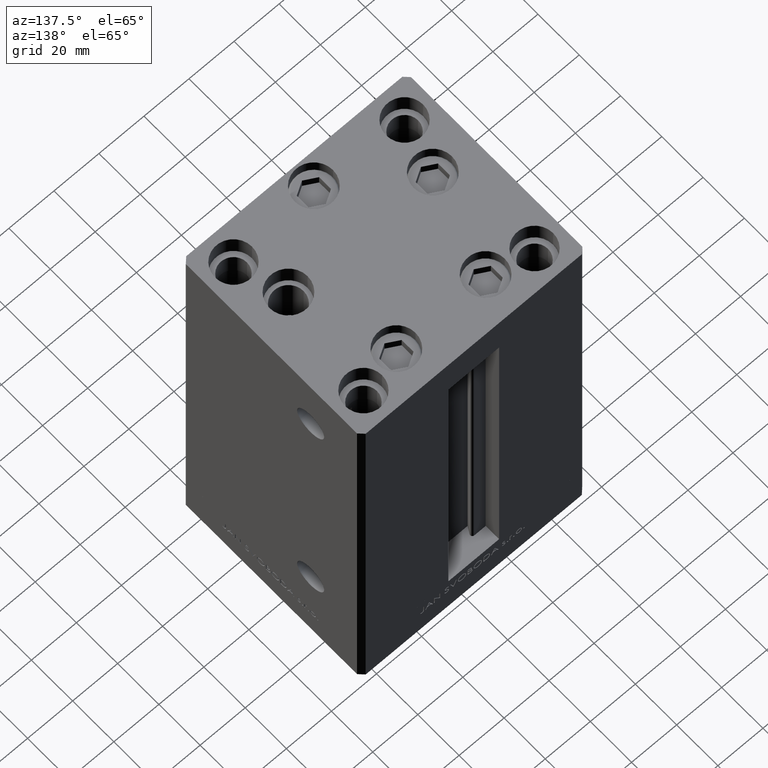
[diagram: clean part render]
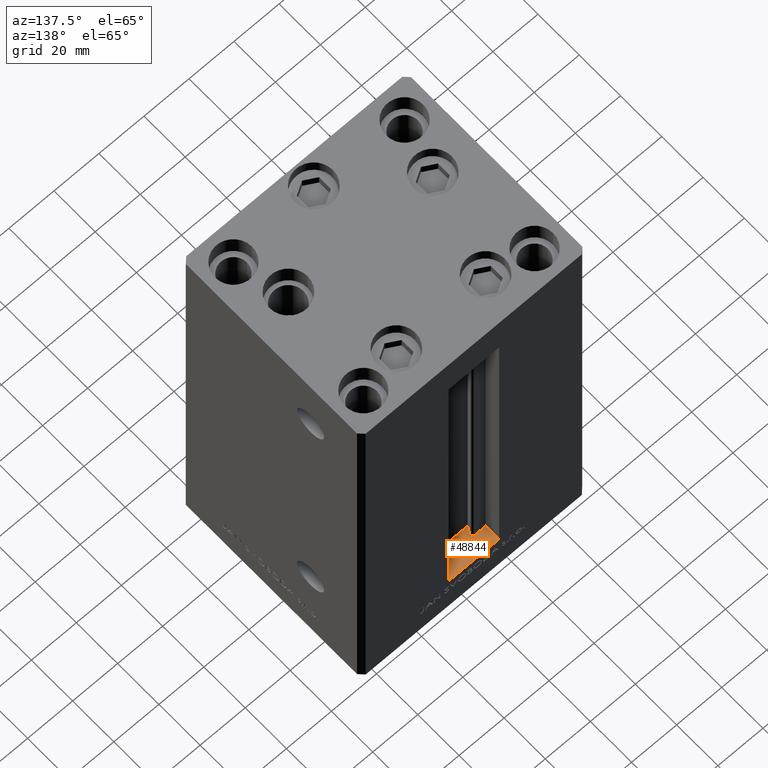
[diagram: same view with one face highlighted and labeled with its STEP entity id]
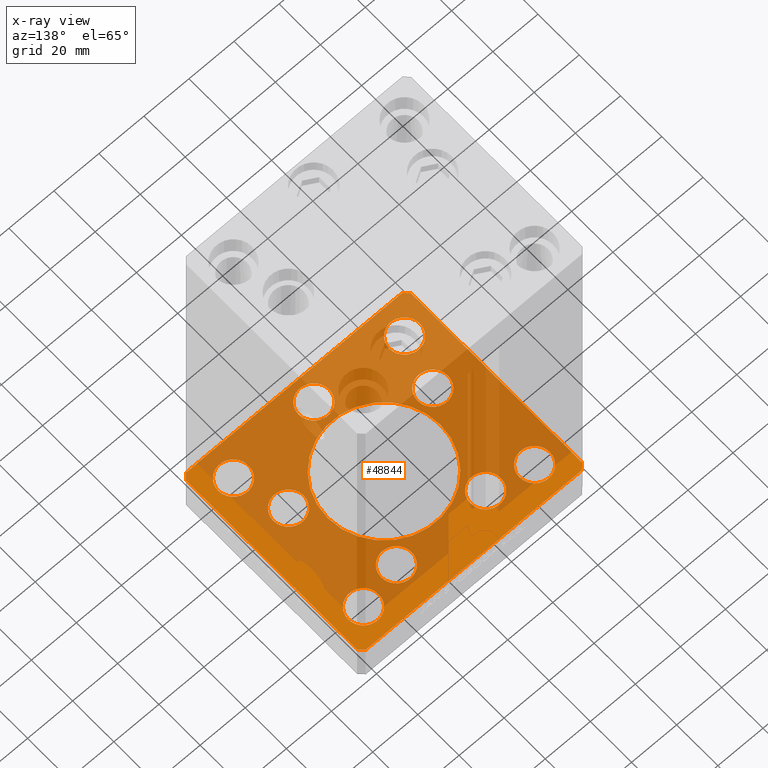
[diagram: x-ray of the same camera — body ghosted, the highlighted face saturated]
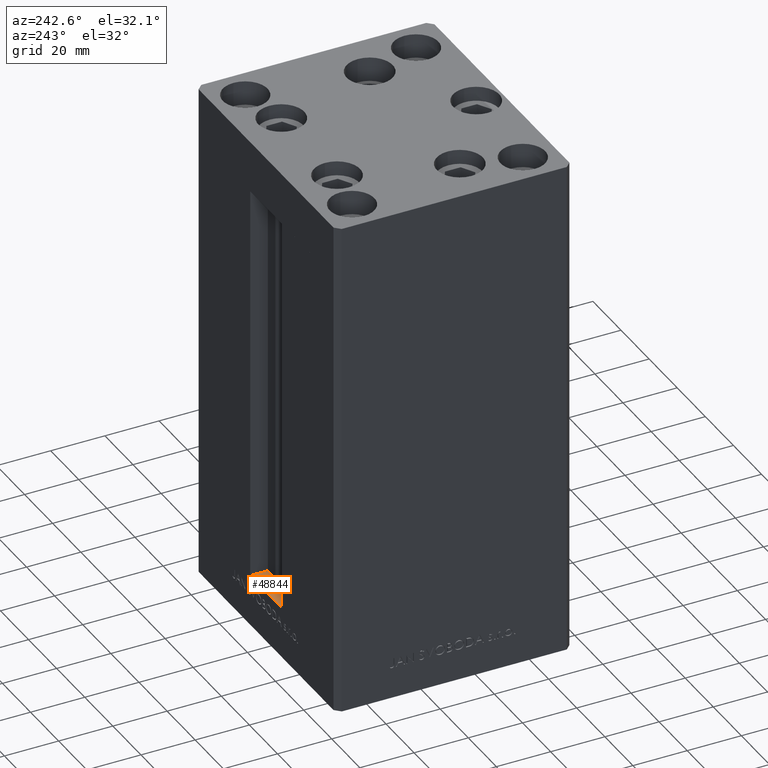
[diagram: same view with one face highlighted and labeled with its STEP entity id]
A machine part, auxiliary view. The second image highlights one B-rep face of the part: STEP entity #48844.
The next image is the same camera in x-ray: the body ghosted, the highlighted face saturated — about 75% of this face is hidden behind the body in this view.
A second angle (auxiliary view) of the same face is appended — the face is thin or edge-on in the first view.
In plain terms, the highlighted planar face has unit normal (0, 0, -1).
Its self-contained STEP definition (entity closure, byte-faithful):
#1394 = AXIS2_PLACEMENT_3D ( 'NONE', #2048, #35918, #40411 ) ;
#1784 = VERTEX_POINT ( 'NONE', #2736 ) ;
#2048 = CARTESIAN_POINT ( 'NONE',  ( 38.00000000000000000, 31.50000000000000000, -19.00000000000000000 ) ) ;
#2058 = ORIENTED_EDGE ( 'NONE', *, *, #21790, .F. ) ;
#2091 = ORIENTED_EDGE ( 'NONE', *, *, #31348, .F. ) ;
#2102 = CARTESIAN_POINT ( 'NONE',  ( -32.05550741379015989, -11.33333333333332860, -19.00000000000000000 ) ) ;
#2342 = DIRECTION ( 'NONE',  ( 1.000000000000000000, 0.000000000000000000, 0.000000000000000000 ) ) ;
#2702 = CARTESIAN_POINT ( 'NONE',  ( -48.00000000000000711, -43.50000000000002842, -19.00000000000000000 ) ) ;
#2736 = CARTESIAN_POINT ( 'NONE',  ( 50.00000000000000000, -41.49999999999992895, -19.00000000000000000 ) ) ;
#2881 = AXIS2_PLACEMENT_3D ( 'NONE', #22016, #34025, #49327 ) ;
#2888 = FACE_BOUND ( 'NONE', #30594, .T. ) ;
#3144 = EDGE_CURVE ( 'NONE', #10215, #18016, #43244, .T. ) ;
#3244 = DIRECTION ( 'NONE',  ( 1.000000000000000000, 0.000000000000000000, 0.000000000000000000 ) ) ;
#3281 = DIRECTION ( 'NONE',  ( -0.000000000000000000, 0.000000000000000000, 1.000000000000000000 ) ) ;
#3740 = AXIS2_PLACEMENT_3D ( 'NONE', #10860, #7106, #11343 ) ;
#3785 = CIRCLE ( 'NONE', #1394, 6.749999999999999112 ) ;
#4360 = CARTESIAN_POINT ( 'NONE',  ( -50.00000000000000000, -41.50000000000004263, -19.00000000000000000 ) ) ;
#4698 = CARTESIAN_POINT ( 'NONE',  ( -44.75000000000000711, -31.50000000000000711, -19.00000000000000000 ) ) ;
#4712 = CARTESIAN_POINT ( 'NONE',  ( 48.00000000000000711, -43.49999999999992184, -19.00000000000000000 ) ) ;
#4984 = DIRECTION ( 'NONE',  ( 1.000000000000000000, 0.000000000000000000, 0.000000000000000000 ) ) ;
#5190 = CARTESIAN_POINT ( 'NONE',  ( -50.00000000000000711, 41.49999999999999289, -19.00000000000000000 ) ) ;
#5194 = VERTEX_POINT ( 'NONE', #5190 ) ;
#5260 = CARTESIAN_POINT ( 'NONE',  ( 0.000000000000000000, -34.00000000000000000, -19.00000000000000000 ) ) ;
#5419 = DIRECTION ( 'NONE',  ( 0.000000000000000000, 1.000000000000000000, 0.000000000000000000 ) ) ;
#5436 = DIRECTION ( 'NONE',  ( -0.000000000000000000, 0.000000000000000000, 1.000000000000000000 ) ) ;
#5676 = CARTESIAN_POINT ( 'NONE',  ( 0.000000000000000000, -34.00000000000000000, -19.00000000000000000 ) ) ;
#5724 = CARTESIAN_POINT ( 'NONE',  ( 32.05550741379015989, -11.33333333333332860, -19.00000000000000000 ) ) ;
#5908 = FACE_BOUND ( 'NONE', #23778, .T. ) ;
#6383 = CARTESIAN_POINT ( 'NONE',  ( -25.30550741379015989, -11.33333333333332860, -19.00000000000000000 ) ) ;
#6409 = CARTESIAN_POINT ( 'NONE',  ( -44.75000000000000000, 31.50000000000000000, -19.00000000000000000 ) ) ;
#6685 = CIRCLE ( 'NONE', #16282, 6.749999999999999112 ) ;
#7106 = DIRECTION ( 'NONE',  ( -0.000000000000000000, 0.000000000000000000, 1.000000000000000000 ) ) ;
#7257 = CARTESIAN_POINT ( 'NONE',  ( 0.000000000000000000, 0.000000000000000000, -19.00000000000000000 ) ) ;
#7320 = CARTESIAN_POINT ( 'NONE',  ( 44.75000000000000000, 31.50000000000000000, -19.00000000000000000 ) ) ;
#7476 = CIRCLE ( 'NONE', #9874, 6.749999999999999112 ) ;
#7491 = DIRECTION ( 'NONE',  ( 0.000000000000000000, -0.000000000000000000, -1.000000000000000000 ) ) ;
#7499 = CARTESIAN_POINT ( 'NONE',  ( 44.75000000000000711, -31.50000000000000711, -19.00000000000000000 ) ) ;
#7636 = DIRECTION ( 'NONE',  ( -0.000000000000000000, 0.000000000000000000, 1.000000000000000000 ) ) ;
#7870 = CIRCLE ( 'NONE', #18282, 6.749999999999999112 ) ;
#7979 = VERTEX_POINT ( 'NONE', #7320 ) ;
#8102 = VECTOR ( 'NONE', #38256, 999.9999999999998863 ) ;
#8246 = DIRECTION ( 'NONE',  ( -0.000000000000000000, 0.000000000000000000, 1.000000000000000000 ) ) ;
#8331 = AXIS2_PLACEMENT_3D ( 'NONE', #5676, #5436, #20987 ) ;
#8622 = AXIS2_PLACEMENT_3D ( 'NONE', #18548, #22083, #11261 ) ;
#8646 = EDGE_CURVE ( 'NONE', #16006, #22380, #7476, .T. ) ;
#8969 = EDGE_CURVE ( 'NONE', #1784, #20825, #13192, .T. ) ;
#9077 = CIRCLE ( 'NONE', #20344, 6.749999999999999112 ) ;
#9221 = VERTEX_POINT ( 'NONE', #36139 ) ;
#9788 = VERTEX_POINT ( 'NONE', #32263 ) ;
#9874 = AXIS2_PLACEMENT_3D ( 'NONE', #5724, #36318, #29299 ) ;
#10215 = VERTEX_POINT ( 'NONE', #24572 ) ;
#10351 = EDGE_LOOP ( 'NONE', ( #30071, #14332 ) ) ;
#10544 = CARTESIAN_POINT ( 'NONE',  ( -32.05550741379015989, -11.33333333333332860, -19.00000000000000000 ) ) ;
#10725 = EDGE_CURVE ( 'NONE', #27677, #47545, #39597, .T. ) ;
#10860 = CARTESIAN_POINT ( 'NONE',  ( 19.82068048781374969, 27.62499999999998934, -19.00000000000000000 ) ) ;
#11085 = ORIENTED_EDGE ( 'NONE', *, *, #41755, .F. ) ;
#11201 = CARTESIAN_POINT ( 'NONE',  ( -31.25000000000000711, -31.50000000000000711, -19.00000000000000000 ) ) ;
#11261 = DIRECTION ( 'NONE',  ( 1.000000000000000000, 0.000000000000000000, 0.000000000000000000 ) ) ;
#11343 = DIRECTION ( 'NONE',  ( 1.000000000000000000, 0.000000000000000000, 0.000000000000000000 ) ) ;
#11477 = CARTESIAN_POINT ( 'NONE',  ( -38.00000000000000711, -31.50000000000000711, -19.00000000000000000 ) ) ;
#11486 = DIRECTION ( 'NONE',  ( 0.000000000000000000, -0.000000000000000000, -1.000000000000000000 ) ) ;
#11971 = EDGE_CURVE ( 'NONE', #22380, #16006, #48469, .T. ) ;
#12108 = AXIS2_PLACEMENT_3D ( 'NONE', #46577, #11486, #19508 ) ;
#12630 = VECTOR ( 'NONE', #29911, 1000.000000000000000 ) ;
#12902 = ORIENTED_EDGE ( 'NONE', *, *, #25590, .F. ) ;
#13046 = VERTEX_POINT ( 'NONE', #25348 ) ;
#13192 = LINE ( 'NONE', #33418, #30756 ) ;
#13201 = VECTOR ( 'NONE', #44300, 1000.000000000000000 ) ;
#13836 = DIRECTION ( 'NONE',  ( -0.000000000000000000, 0.000000000000000000, 1.000000000000000000 ) ) ;
#14171 = DIRECTION ( 'NONE',  ( 1.000000000000000000, 0.000000000000000000, 0.000000000000000000 ) ) ;
#14332 = ORIENTED_EDGE ( 'NONE', *, *, #18773, .F. ) ;
#14425 = FACE_OUTER_BOUND ( 'NONE', #41709, .T. ) ;
#15024 = VECTOR ( 'NONE', #43061, 1000.000000000000000 ) ;
#15259 = AXIS2_PLACEMENT_3D ( 'NONE', #43970, #21162, #32191 ) ;
#15480 = CIRCLE ( 'NONE', #43523, 6.749999999999999112 ) ;
#15486 = EDGE_CURVE ( 'NONE', #15557, #1784, #23796, .T. ) ;
#15538 = VERTEX_POINT ( 'NONE', #6383 ) ;
#15557 = VERTEX_POINT ( 'NONE', #37228 ) ;
#16006 = VERTEX_POINT ( 'NONE', #31287 ) ;
#16282 = AXIS2_PLACEMENT_3D ( 'NONE', #38332, #42085, #49383 ) ;
#16731 = ORIENTED_EDGE ( 'NONE', *, *, #46463, .T. ) ;
#16935 = ORIENTED_EDGE ( 'NONE', *, *, #23435, .T. ) ;
#16945 = CIRCLE ( 'NONE', #24203, 6.749999999999999112 ) ;
#17236 = VERTEX_POINT ( 'NONE', #28400 ) ;
#17447 = FACE_BOUND ( 'NONE', #49205, .T. ) ;
#17868 = EDGE_CURVE ( 'NONE', #40601, #15557, #48056, .T. ) ;
#17935 = FACE_BOUND ( 'NONE', #21556, .T. ) ;
#18016 = VERTEX_POINT ( 'NONE', #6409 ) ;
#18072 = ORIENTED_EDGE ( 'NONE', *, *, #41538, .T. ) ;
#18142 = VECTOR ( 'NONE', #46836, 1000.000000000000114 ) ;
#18147 = EDGE_CURVE ( 'NONE', #13046, #7979, #3785, .T. ) ;
#18185 = FACE_BOUND ( 'NONE', #46782, .T. ) ;
#18276 = EDGE_CURVE ( 'NONE', #37534, #15538, #39055, .T. ) ;
#18282 = AXIS2_PLACEMENT_3D ( 'NONE', #46366, #8246, #38852 ) ;
#18437 = FACE_BOUND ( 'NONE', #20364, .T. ) ;
#18548 = CARTESIAN_POINT ( 'NONE',  ( 38.00000000000000711, -31.50000000000000711, -19.00000000000000000 ) ) ;
#18773 = EDGE_CURVE ( 'NONE', #20967, #46425, #39772, .T. ) ;
#18829 = CARTESIAN_POINT ( 'NONE',  ( -19.82068048781374969, 27.62499999999998934, -19.00000000000000000 ) ) ;
#19494 = VECTOR ( 'NONE', #38321, 1000.000000000000000 ) ;
#19508 = DIRECTION ( 'NONE',  ( 1.000000000000000000, 0.000000000000000000, 0.000000000000000000 ) ) ;
#19687 = ORIENTED_EDGE ( 'NONE', *, *, #36786, .T. ) ;
#19762 = CARTESIAN_POINT ( 'NONE',  ( 47.99999999999999289, 43.50000000000000000, -19.00000000000000000 ) ) ;
#20344 = AXIS2_PLACEMENT_3D ( 'NONE', #5260, #44364, #40603 ) ;
#20354 = CARTESIAN_POINT ( 'NONE',  ( 38.80550741379015989, -11.33333333333332860, -19.00000000000000000 ) ) ;
#20364 = EDGE_LOOP ( 'NONE', ( #2058, #2091 ) ) ;
#20469 = CARTESIAN_POINT ( 'NONE',  ( -38.00000000000000711, -31.50000000000000711, -19.00000000000000000 ) ) ;
#20548 = DIRECTION ( 'NONE',  ( -0.000000000000000000, 0.000000000000000000, 1.000000000000000000 ) ) ;
#20646 = CARTESIAN_POINT ( 'NONE',  ( -26.57068048781375325, 27.62499999999998934, -19.00000000000000000 ) ) ;
#20825 = VERTEX_POINT ( 'NONE', #30676 ) ;
#20891 = VERTEX_POINT ( 'NONE', #28163 ) ;
#20967 = VERTEX_POINT ( 'NONE', #4698 ) ;
#20987 = DIRECTION ( 'NONE',  ( 1.000000000000000000, 0.000000000000000000, 0.000000000000000000 ) ) ;
#21162 = DIRECTION ( 'NONE',  ( 0.000000000000000000, -0.000000000000000000, -1.000000000000000000 ) ) ;
#21426 = AXIS2_PLACEMENT_3D ( 'NONE', #7257, #7491, #3244 ) ;
#21556 = EDGE_LOOP ( 'NONE', ( #36417, #43465 ) ) ;
#21577 = VERTEX_POINT ( 'NONE', #20646 ) ;
#21790 = EDGE_CURVE ( 'NONE', #9788, #23586, #47815, .T. ) ;
#22016 = CARTESIAN_POINT ( 'NONE',  ( 38.00000000000000711, -31.50000000000000711, -19.00000000000000000 ) ) ;
#22083 = DIRECTION ( 'NONE',  ( -0.000000000000000000, 0.000000000000000000, 1.000000000000000000 ) ) ;
#22213 = EDGE_CURVE ( 'NONE', #5194, #36944, #22399, .T. ) ;
#22380 = VERTEX_POINT ( 'NONE', #20354 ) ;
#22399 = LINE ( 'NONE', #34635, #12630 ) ;
#22563 = CIRCLE ( 'NONE', #12108, 25.00000000000000000 ) ;
#22581 = VERTEX_POINT ( 'NONE', #7499 ) ;
#22596 = EDGE_CURVE ( 'NONE', #30518, #22581, #30253, .T. ) ;
#22798 = LINE ( 'NONE', #19762, #19494 ) ;
#22959 = DIRECTION ( 'NONE',  ( 1.000000000000000000, 0.000000000000000000, 0.000000000000000000 ) ) ;
#22965 = ORIENTED_EDGE ( 'NONE', *, *, #49011, .T. ) ;
#23219 = CARTESIAN_POINT ( 'NONE',  ( 50.00000000000000000, 41.50000000000000711, -19.00000000000000000 ) ) ;
#23435 = EDGE_CURVE ( 'NONE', #21577, #9221, #7870, .T. ) ;
#23439 = LINE ( 'NONE', #4360, #25573 ) ;
#23586 = VERTEX_POINT ( 'NONE', #40330 ) ;
#23778 = EDGE_LOOP ( 'NONE', ( #41898, #27160 ) ) ;
#23796 = LINE ( 'NONE', #4712, #18142 ) ;
#24203 = AXIS2_PLACEMENT_3D ( 'NONE', #20469, #39515, #39022 ) ;
#24468 = AXIS2_PLACEMENT_3D ( 'NONE', #33150, #13836, #45679 ) ;
#24572 = CARTESIAN_POINT ( 'NONE',  ( -31.25000000000000000, 31.50000000000000000, -19.00000000000000000 ) ) ;
#24605 = CIRCLE ( 'NONE', #30988, 6.749999999999999112 ) ;
#24628 = EDGE_LOOP ( 'NONE', ( #16731, #32969 ) ) ;
#25158 = ORIENTED_EDGE ( 'NONE', *, *, #8969, .F. ) ;
#25348 = CARTESIAN_POINT ( 'NONE',  ( 31.25000000000000000, 31.50000000000000000, -19.00000000000000000 ) ) ;
#25573 = VECTOR ( 'NONE', #34951, 1000.000000000000000 ) ;
#25590 = EDGE_CURVE ( 'NONE', #36944, #40601, #23439, .T. ) ;
#25655 = ORIENTED_EDGE ( 'NONE', *, *, #18147, .F. ) ;
#26229 = ORIENTED_EDGE ( 'NONE', *, *, #17868, .F. ) ;
#26458 = EDGE_CURVE ( 'NONE', #15538, #37534, #31205, .T. ) ;
#26493 = LINE ( 'NONE', #23219, #8102 ) ;
#26966 = AXIS2_PLACEMENT_3D ( 'NONE', #11477, #46571, #38558 ) ;
#27160 = ORIENTED_EDGE ( 'NONE', *, *, #18276, .T. ) ;
#27586 = CARTESIAN_POINT ( 'NONE',  ( -38.00000000000000000, 31.50000000000000000, -19.00000000000000000 ) ) ;
#27677 = VERTEX_POINT ( 'NONE', #39641 ) ;
#28163 = CARTESIAN_POINT ( 'NONE',  ( -48.00000000000000000, 43.49999999999997158, -19.00000000000000000 ) ) ;
#28400 = CARTESIAN_POINT ( 'NONE',  ( 47.99999999999999289, 43.50000000000000000, -19.00000000000000000 ) ) ;
#28897 = ORIENTED_EDGE ( 'NONE', *, *, #10725, .T. ) ;
#28930 = CARTESIAN_POINT ( 'NONE',  ( 26.57068048781374969, 27.62499999999998934, -19.00000000000000000 ) ) ;
#28999 = CARTESIAN_POINT ( 'NONE',  ( 0.000000000000000000, 0.000000000000000000, -19.00000000000000000 ) ) ;
#29018 = CARTESIAN_POINT ( 'NONE',  ( -48.00000000000000000, 43.49999999999997158, -19.00000000000000000 ) ) ;
#29215 = EDGE_CURVE ( 'NONE', #7979, #13046, #44091, .T. ) ;
#29299 = DIRECTION ( 'NONE',  ( 1.000000000000000000, 0.000000000000000000, 0.000000000000000000 ) ) ;
#29381 = DIRECTION ( 'NONE',  ( -0.000000000000000000, 0.000000000000000000, 1.000000000000000000 ) ) ;
#29911 = DIRECTION ( 'NONE',  ( 8.360113137237620037E-17, -1.000000000000000000, 0.000000000000000000 ) ) ;
#30071 = ORIENTED_EDGE ( 'NONE', *, *, #32654, .F. ) ;
#30253 = CIRCLE ( 'NONE', #8622, 6.749999999999999112 ) ;
#30518 = VERTEX_POINT ( 'NONE', #32767 ) ;
#30594 = EDGE_LOOP ( 'NONE', ( #31652, #16935 ) ) ;
#30676 = CARTESIAN_POINT ( 'NONE',  ( 50.00000000000000000, 41.50000000000000711, -19.00000000000000000 ) ) ;
#30732 = EDGE_CURVE ( 'NONE', #20825, #17236, #26493, .T. ) ;
#30756 = VECTOR ( 'NONE', #5419, 1000.000000000000000 ) ;
#30988 = AXIS2_PLACEMENT_3D ( 'NONE', #41992, #7636, #22959 ) ;
#31205 = CIRCLE ( 'NONE', #35214, 6.749999999999999112 ) ;
#31287 = CARTESIAN_POINT ( 'NONE',  ( 25.30550741379015989, -11.33333333333332860, -19.00000000000000000 ) ) ;
#31348 = EDGE_CURVE ( 'NONE', #23586, #9788, #22563, .T. ) ;
#31405 = VERTEX_POINT ( 'NONE', #42814 ) ;
#31652 = ORIENTED_EDGE ( 'NONE', *, *, #41257, .T. ) ;
#32191 = DIRECTION ( 'NONE',  ( 1.000000000000000000, 0.000000000000000000, 0.000000000000000000 ) ) ;
#32263 = CARTESIAN_POINT ( 'NONE',  ( 25.00000000000000000, 0.000000000000000000, -19.00000000000000000 ) ) ;
#32654 = EDGE_CURVE ( 'NONE', #46425, #20967, #16945, .T. ) ;
#32767 = CARTESIAN_POINT ( 'NONE',  ( 31.25000000000000711, -31.50000000000000711, -19.00000000000000000 ) ) ;
#32969 = ORIENTED_EDGE ( 'NONE', *, *, #22596, .T. ) ;
#33150 = CARTESIAN_POINT ( 'NONE',  ( 32.05550741379015989, -11.33333333333332860, -19.00000000000000000 ) ) ;
#33236 = FACE_BOUND ( 'NONE', #10351, .T. ) ;
#33418 = CARTESIAN_POINT ( 'NONE',  ( 50.00000000000000000, -41.49999999999992895, -19.00000000000000000 ) ) ;
#33876 = DIRECTION ( 'NONE',  ( 1.000000000000000000, 0.000000000000000000, 0.000000000000000000 ) ) ;
#34025 = DIRECTION ( 'NONE',  ( -0.000000000000000000, 0.000000000000000000, 1.000000000000000000 ) ) ;
#34635 = CARTESIAN_POINT ( 'NONE',  ( -50.00000000000000711, 41.49999999999999289, -19.00000000000000000 ) ) ;
#34755 = EDGE_LOOP ( 'NONE', ( #42322, #25655 ) ) ;
#34951 = DIRECTION ( 'NONE',  ( 0.7071067811865487940, -0.7071067811865463515, 0.000000000000000000 ) ) ;
#35214 = AXIS2_PLACEMENT_3D ( 'NONE', #2102, #40221, #2342 ) ;
#35253 = ORIENTED_EDGE ( 'NONE', *, *, #22213, .F. ) ;
#35326 = CARTESIAN_POINT ( 'NONE',  ( -38.80550741379015989, -11.33333333333332860, -19.00000000000000000 ) ) ;
#35440 = ORIENTED_EDGE ( 'NONE', *, *, #49186, .T. ) ;
#35918 = DIRECTION ( 'NONE',  ( 0.000000000000000000, -0.000000000000000000, -1.000000000000000000 ) ) ;
#36139 = CARTESIAN_POINT ( 'NONE',  ( -13.07068048781375325, 27.62499999999998934, -19.00000000000000000 ) ) ;
#36318 = DIRECTION ( 'NONE',  ( -0.000000000000000000, 0.000000000000000000, 1.000000000000000000 ) ) ;
#36417 = ORIENTED_EDGE ( 'NONE', *, *, #11971, .T. ) ;
#36521 = CARTESIAN_POINT ( 'NONE',  ( -48.00000000000000711, -43.50000000000002842, -19.00000000000000000 ) ) ;
#36610 = EDGE_LOOP ( 'NONE', ( #48522, #19687 ) ) ;
#36786 = EDGE_CURVE ( 'NONE', #18016, #10215, #6685, .T. ) ;
#36944 = VERTEX_POINT ( 'NONE', #37541 ) ;
#37136 = DIRECTION ( 'NONE',  ( 1.000000000000000000, 0.000000000000000000, 0.000000000000000000 ) ) ;
#37228 = CARTESIAN_POINT ( 'NONE',  ( 48.00000000000000711, -43.49999999999992184, -19.00000000000000000 ) ) ;
#37534 = VERTEX_POINT ( 'NONE', #35326 ) ;
#37541 = CARTESIAN_POINT ( 'NONE',  ( -50.00000000000000000, -41.50000000000004263, -19.00000000000000000 ) ) ;
#37896 = ORIENTED_EDGE ( 'NONE', *, *, #15486, .F. ) ;
#38256 = DIRECTION ( 'NONE',  ( -0.7071067811865512365, 0.7071067811865439090, 0.000000000000000000 ) ) ;
#38321 = DIRECTION ( 'NONE',  ( -1.000000000000000000, -2.891205793294678326E-16, 0.000000000000000000 ) ) ;
#38332 = CARTESIAN_POINT ( 'NONE',  ( -38.00000000000000000, 31.50000000000000000, -19.00000000000000000 ) ) ;
#38435 = ORIENTED_EDGE ( 'NONE', *, *, #44921, .F. ) ;
#38558 = DIRECTION ( 'NONE',  ( 1.000000000000000000, 0.000000000000000000, 0.000000000000000000 ) ) ;
#38852 = DIRECTION ( 'NONE',  ( 1.000000000000000000, 0.000000000000000000, 0.000000000000000000 ) ) ;
#39022 = DIRECTION ( 'NONE',  ( 1.000000000000000000, 0.000000000000000000, 0.000000000000000000 ) ) ;
#39055 = CIRCLE ( 'NONE', #43845, 6.749999999999999112 ) ;
#39515 = DIRECTION ( 'NONE',  ( 0.000000000000000000, -0.000000000000000000, -1.000000000000000000 ) ) ;
#39597 = CIRCLE ( 'NONE', #8331, 6.749999999999999112 ) ;
#39641 = CARTESIAN_POINT ( 'NONE',  ( -6.749999999999999112, -34.00000000000000000, -19.00000000000000000 ) ) ;
#39772 = CIRCLE ( 'NONE', #26966, 6.749999999999999112 ) ;
#40221 = DIRECTION ( 'NONE',  ( -0.000000000000000000, 0.000000000000000000, 1.000000000000000000 ) ) ;
#40330 = CARTESIAN_POINT ( 'NONE',  ( -25.00000000000000000, 3.061616997868383043E-15, -19.00000000000000000 ) ) ;
#40411 = DIRECTION ( 'NONE',  ( 1.000000000000000000, 0.000000000000000000, 0.000000000000000000 ) ) ;
#40584 = CIRCLE ( 'NONE', #3740, 6.749999999999999112 ) ;
#40601 = VERTEX_POINT ( 'NONE', #2702 ) ;
#40603 = DIRECTION ( 'NONE',  ( 1.000000000000000000, 0.000000000000000000, 0.000000000000000000 ) ) ;
#40762 = FACE_BOUND ( 'NONE', #36610, .T. ) ;
#40798 = AXIS2_PLACEMENT_3D ( 'NONE', #27586, #20548, #4984 ) ;
#40947 = ORIENTED_EDGE ( 'NONE', *, *, #30732, .F. ) ;
#41257 = EDGE_CURVE ( 'NONE', #9221, #21577, #15480, .T. ) ;
#41296 = CIRCLE ( 'NONE', #2881, 6.749999999999999112 ) ;
#41538 = EDGE_CURVE ( 'NONE', #47545, #27677, #9077, .T. ) ;
#41709 = EDGE_LOOP ( 'NONE', ( #12902, #35253, #38435, #11085, #40947, #25158, #37896, #26229 ) ) ;
#41755 = EDGE_CURVE ( 'NONE', #17236, #20891, #22798, .T. ) ;
#41898 = ORIENTED_EDGE ( 'NONE', *, *, #26458, .T. ) ;
#41992 = CARTESIAN_POINT ( 'NONE',  ( 19.82068048781374969, 27.62499999999998934, -19.00000000000000000 ) ) ;
#42085 = DIRECTION ( 'NONE',  ( -0.000000000000000000, 0.000000000000000000, 1.000000000000000000 ) ) ;
#42322 = ORIENTED_EDGE ( 'NONE', *, *, #29215, .F. ) ;
#42814 = CARTESIAN_POINT ( 'NONE',  ( 13.07068048781375147, 27.62499999999998934, -19.00000000000000000 ) ) ;
#43061 = DIRECTION ( 'NONE',  ( 1.000000000000000000, 1.156482317317871331E-15, 0.000000000000000000 ) ) ;
#43244 = CIRCLE ( 'NONE', #40798, 6.749999999999999112 ) ;
#43465 = ORIENTED_EDGE ( 'NONE', *, *, #8646, .T. ) ;
#43523 = AXIS2_PLACEMENT_3D ( 'NONE', #18829, #29381, #33876 ) ;
#43845 = AXIS2_PLACEMENT_3D ( 'NONE', #10544, #3281, #37136 ) ;
#43970 = CARTESIAN_POINT ( 'NONE',  ( 38.00000000000000000, 31.50000000000000000, -19.00000000000000000 ) ) ;
#44091 = CIRCLE ( 'NONE', #15259, 6.749999999999999112 ) ;
#44300 = DIRECTION ( 'NONE',  ( -0.7071067811865536790, -0.7071067811865414665, 0.000000000000000000 ) ) ;
#44364 = DIRECTION ( 'NONE',  ( -0.000000000000000000, 0.000000000000000000, 1.000000000000000000 ) ) ;
#44921 = EDGE_CURVE ( 'NONE', #20891, #5194, #48067, .T. ) ;
#45019 = FACE_BOUND ( 'NONE', #24628, .T. ) ;
#45385 = CARTESIAN_POINT ( 'NONE',  ( 6.749999999999999112, -34.00000000000000000, -19.00000000000000000 ) ) ;
#45679 = DIRECTION ( 'NONE',  ( 1.000000000000000000, 0.000000000000000000, 0.000000000000000000 ) ) ;
#46366 = CARTESIAN_POINT ( 'NONE',  ( -19.82068048781374969, 27.62499999999998934, -19.00000000000000000 ) ) ;
#46425 = VERTEX_POINT ( 'NONE', #11201 ) ;
#46463 = EDGE_CURVE ( 'NONE', #22581, #30518, #41296, .T. ) ;
#46571 = DIRECTION ( 'NONE',  ( 0.000000000000000000, -0.000000000000000000, -1.000000000000000000 ) ) ;
#46577 = CARTESIAN_POINT ( 'NONE',  ( 0.000000000000000000, 0.000000000000000000, -19.00000000000000000 ) ) ;
#46782 = EDGE_LOOP ( 'NONE', ( #35440, #22965 ) ) ;
#46836 = DIRECTION ( 'NONE',  ( 0.7071067811865474617, 0.7071067811865474617, 0.000000000000000000 ) ) ;
#47284 = VERTEX_POINT ( 'NONE', #28930 ) ;
#47545 = VERTEX_POINT ( 'NONE', #45385 ) ;
#47812 = AXIS2_PLACEMENT_3D ( 'NONE', #28999, #48537, #14171 ) ;
#47815 = CIRCLE ( 'NONE', #21426, 25.00000000000000000 ) ;
#48047 = PLANE ( 'NONE',  #47812 ) ;
#48056 = LINE ( 'NONE', #36521, #15024 ) ;
#48067 = LINE ( 'NONE', #29018, #13201 ) ;
#48469 = CIRCLE ( 'NONE', #24468, 6.749999999999999112 ) ;
#48522 = ORIENTED_EDGE ( 'NONE', *, *, #3144, .T. ) ;
#48537 = DIRECTION ( 'NONE',  ( -0.000000000000000000, 0.000000000000000000, 1.000000000000000000 ) ) ;
#48787 = FACE_BOUND ( 'NONE', #34755, .T. ) ;
#48844 = ADVANCED_FACE ( 'NONE', ( #18437, #5908, #17447, #17935, #18185, #2888, #48787, #33236, #14425, #40762, #45019 ), #48047, .F. ) ;
#49011 = EDGE_CURVE ( 'NONE', #31405, #47284, #24605, .T. ) ;
#49186 = EDGE_CURVE ( 'NONE', #47284, #31405, #40584, .T. ) ;
#49205 = EDGE_LOOP ( 'NONE', ( #18072, #28897 ) ) ;
#49327 = DIRECTION ( 'NONE',  ( 1.000000000000000000, 0.000000000000000000, 0.000000000000000000 ) ) ;
#49383 = DIRECTION ( 'NONE',  ( 1.000000000000000000, 0.000000000000000000, 0.000000000000000000 ) ) ;